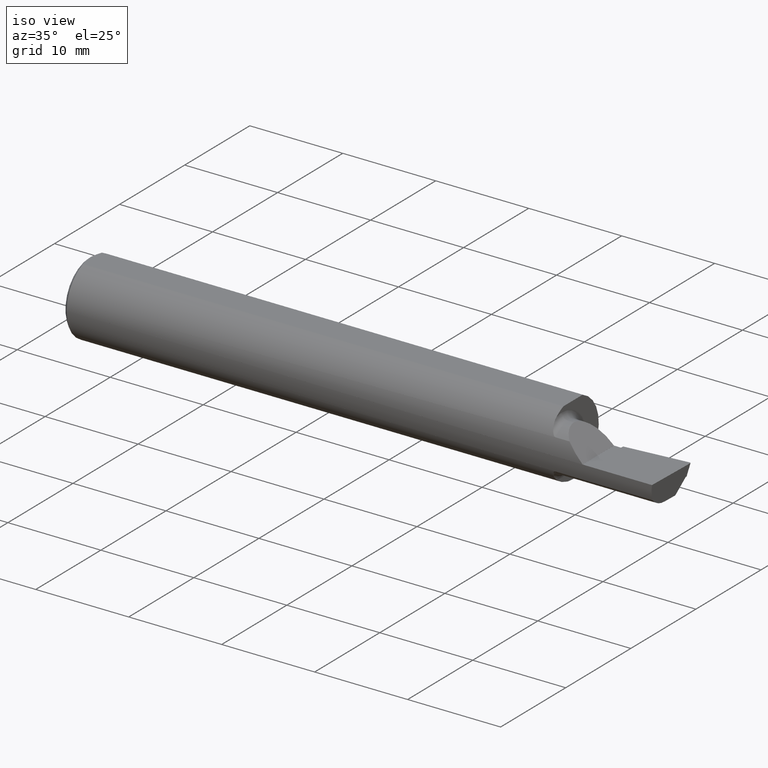
[diagram: clean part render]
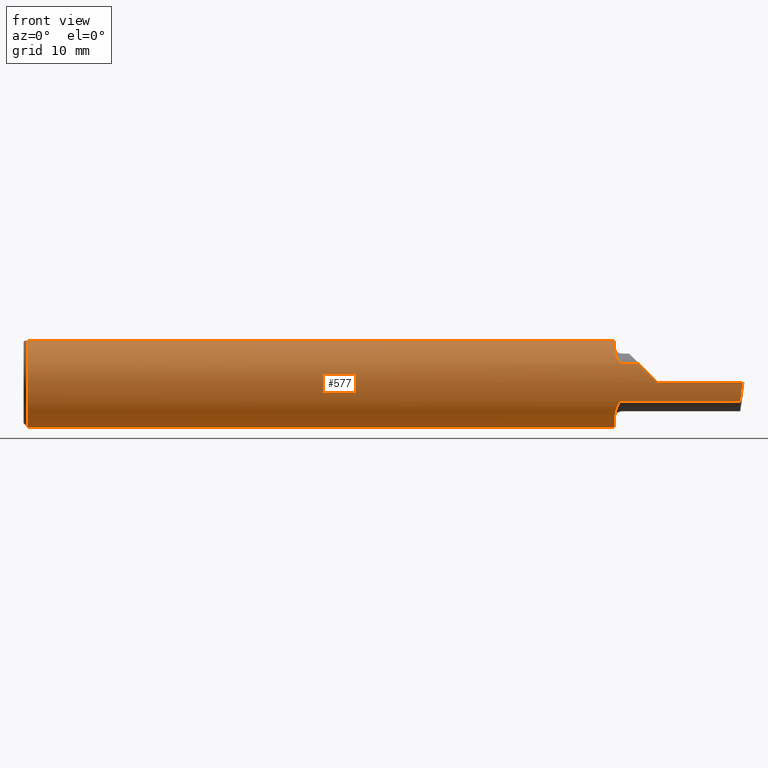
[diagram: tour spotlight — one face highlighted and labeled with its STEP entity id]
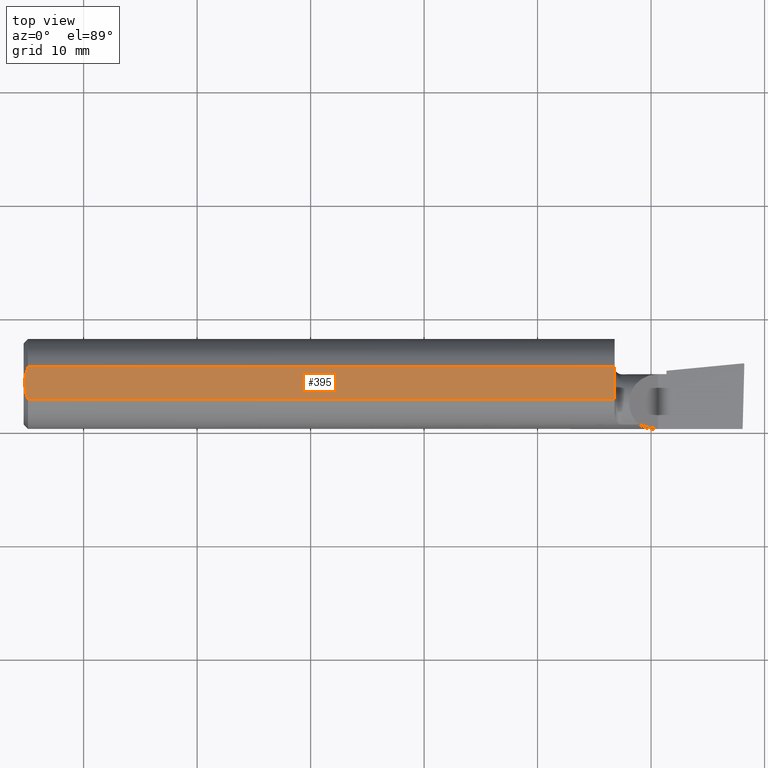
[diagram: tour spotlight — one face highlighted and labeled with its STEP entity id]
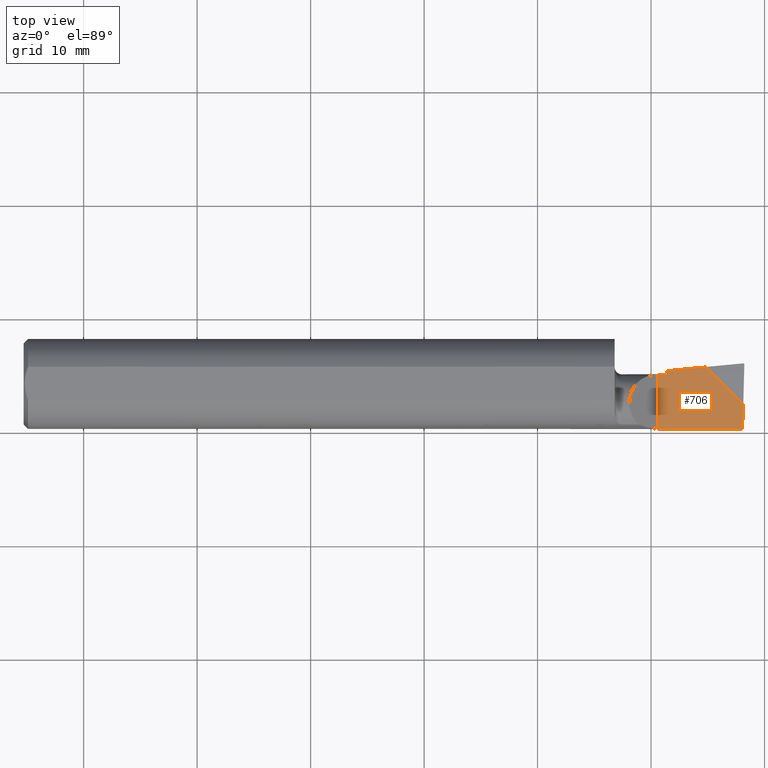
[diagram: tour spotlight — one face highlighted and labeled with its STEP entity id]
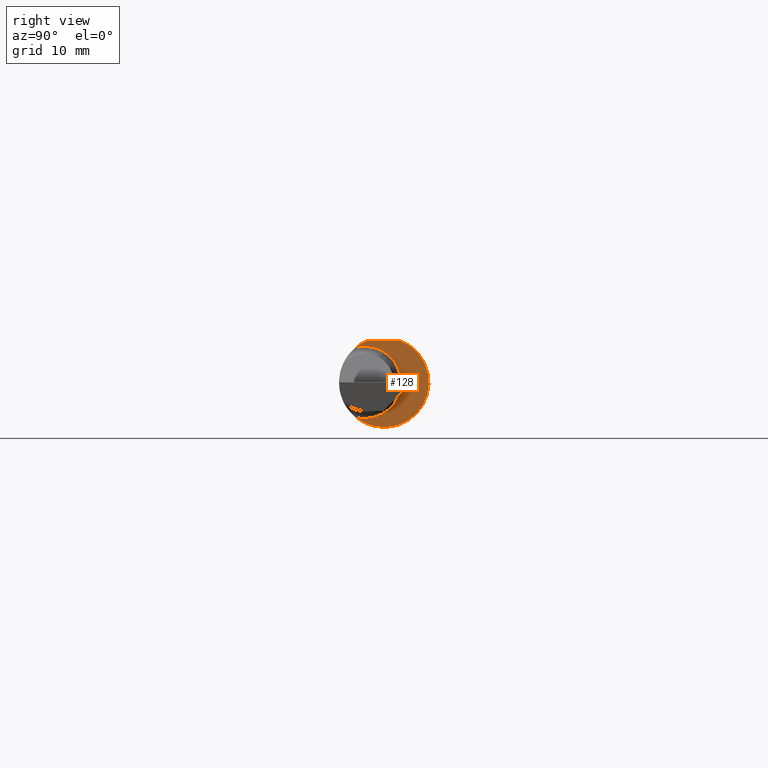
[diagram: tour spotlight — one face highlighted and labeled with its STEP entity id]
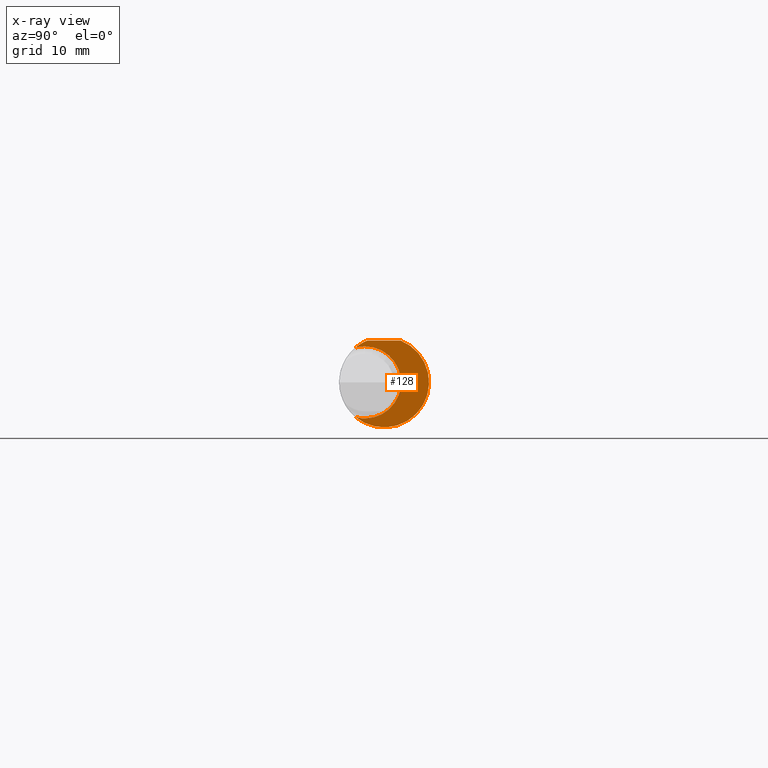
[diagram: x-ray of the same camera — body ghosted, this tour face saturated]
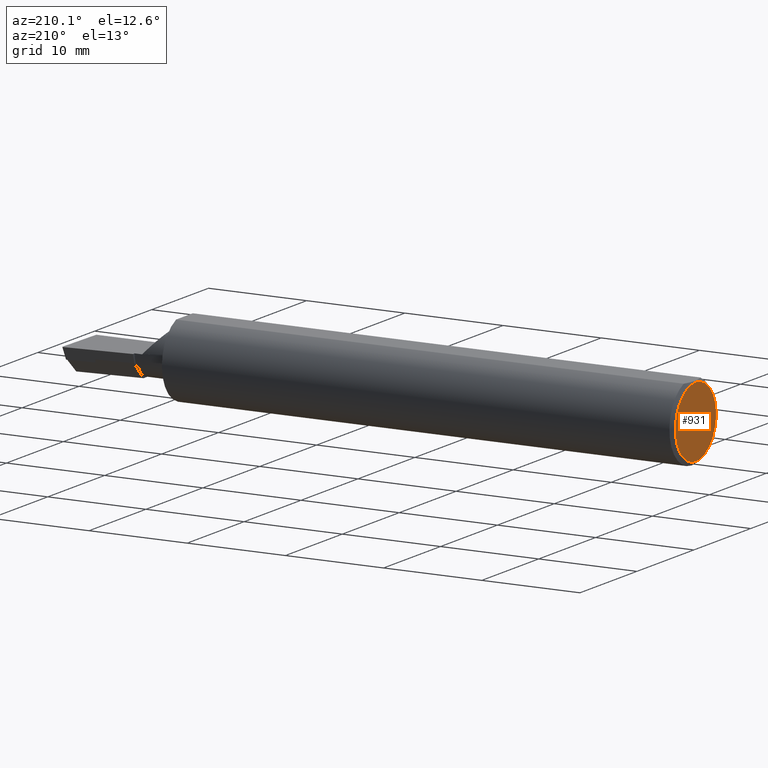
[diagram: tour spotlight — one face highlighted and labeled with its STEP entity id]
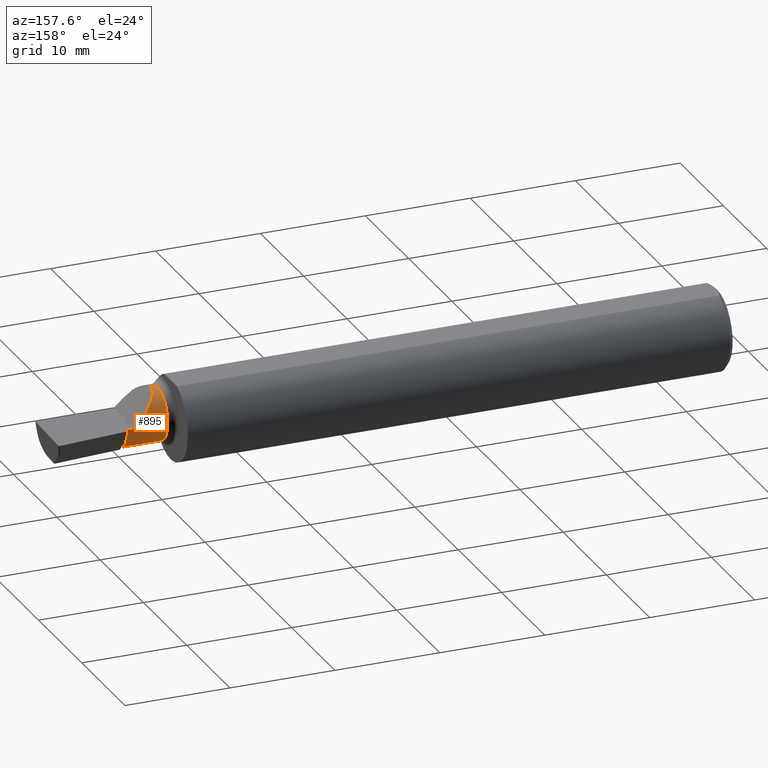
[diagram: tour spotlight — one face highlighted and labeled with its STEP entity id]
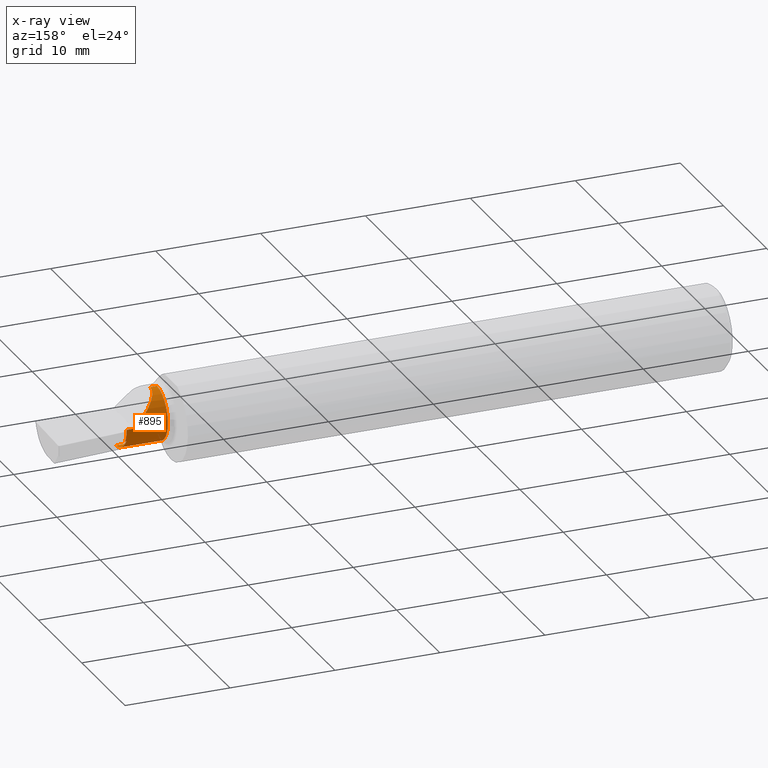
[diagram: x-ray of the same camera — body ghosted, this tour face saturated]
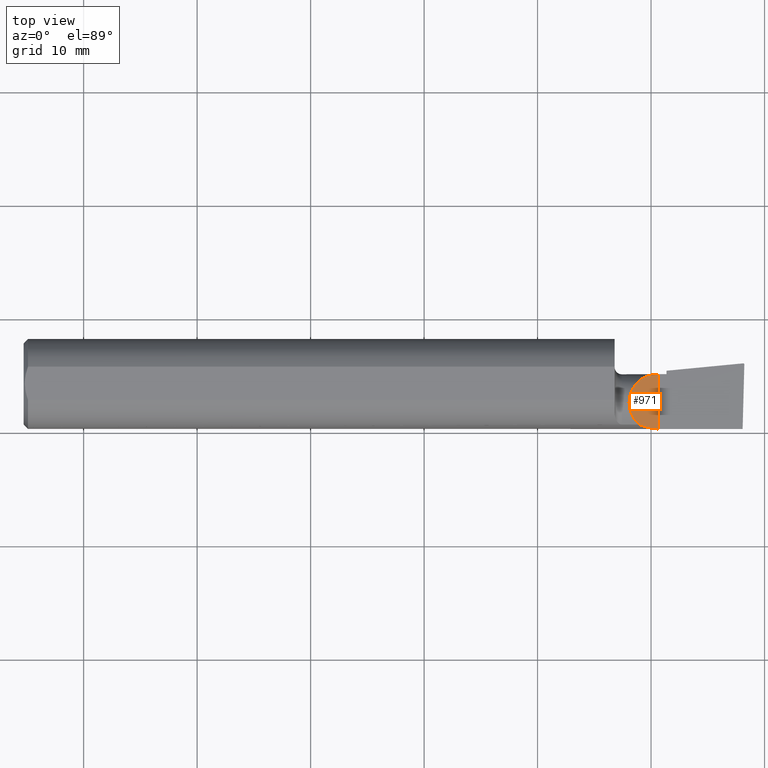
[diagram: tour spotlight — one face highlighted and labeled with its STEP entity id]
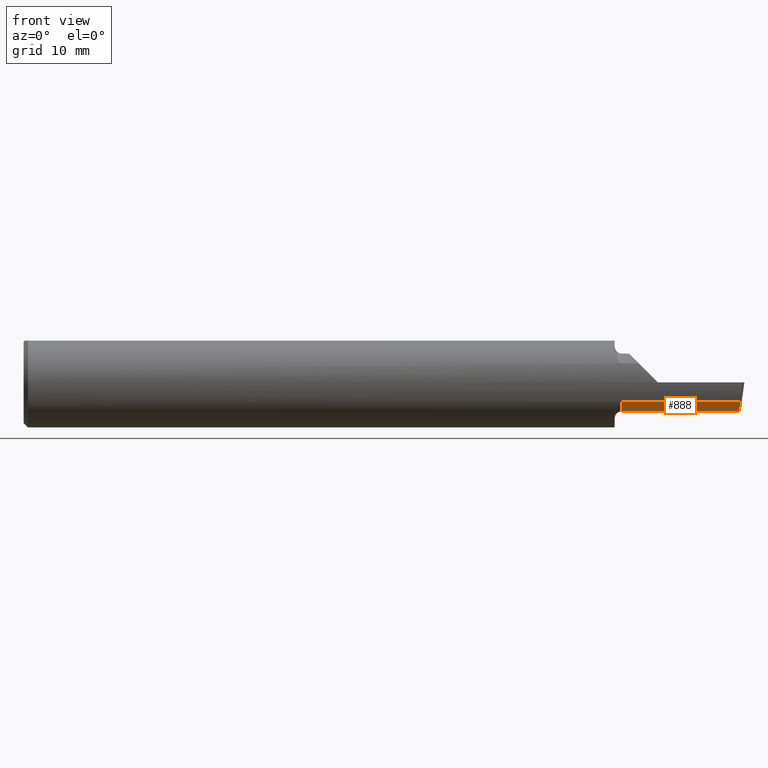
[diagram: tour spotlight — one face highlighted and labeled with its STEP entity id]
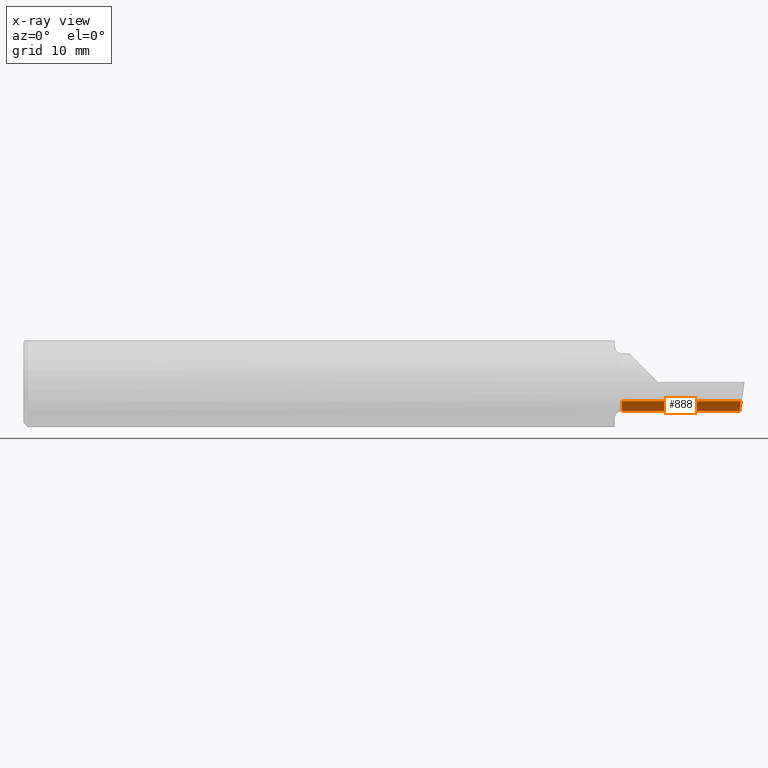
[diagram: x-ray of the same camera — body ghosted, this tour face saturated]
A machine part: a face-by-face anatomy tour. The part has 30 B-rep faces; the first image is the clean iso view, then the 8 largest visible faces are spotlighted one at a time (largest first), each with its STEP entity span.

Face 1 — front view, entity #577. In plain terms, the highlighted cylindrical surface (partial cylindrical patch) has radius 3.9649 mm, axis along (-1, -0, -0).
Definition (entity closure, byte-faithful):
#29 = CARTESIAN_POINT ( 'NONE',  ( 63.50000000000000000, -3.964939999999998577, -8.673617379884035472E-16 ) ) ;
#33 = CIRCLE ( 'NONE', #339, 3.964939999999999465 ) ;
#35 = CARTESIAN_POINT ( 'NONE',  ( 63.34721324168081225, -3.964939999999998577, -1.734723475976807094E-15 ) ) ;
#37 = DIRECTION ( 'NONE',  ( -1.000000000000000000, -0.000000000000000000, -0.000000000000000000 ) ) ;
#46 = VERTEX_POINT ( 'NONE', #1159 ) ;
#55 = ORIENTED_EDGE ( 'NONE', *, *, #1152, .T. ) ;
#59 = CARTESIAN_POINT ( 'NONE',  ( 52.10986463659906320, -3.000605534502818639, -2.611659286570838567 ) ) ;
#66 = CARTESIAN_POINT ( 'NONE',  ( 0.3809999999999924558, 0.000000000000000000, 0.000000000000000000 ) ) ;
#70 = VECTOR ( 'NONE', #833, 1000.000000000000000 ) ;
#78 = CARTESIAN_POINT ( 'NONE',  ( 52.62209333977406800, -3.593173028997538321, 1.676424154804801780 ) ) ;
#87 = CARTESIAN_POINT ( 'NONE',  ( 52.55266131581567635, -3.573289969088939255, -1.718397189166197547 ) ) ;
#88 = VERTEX_POINT ( 'NONE', #689 ) ;
#90 = EDGE_CURVE ( 'NONE', #695, #105, #33, .T. ) ;
#105 = VERTEX_POINT ( 'NONE', #694 ) ;
#107 = CARTESIAN_POINT ( 'NONE',  ( 63.50000000000000000, -1.462034237629201039, 3.685539999999999150 ) ) ;
#109 = ORIENTED_EDGE ( 'NONE', *, *, #278, .T. ) ;
#118 = AXIS2_PLACEMENT_3D ( 'NONE', #713, #1018, #923 ) ;
#120 = EDGE_CURVE ( 'NONE', #105, #620, #504, .T. ) ;
#121 = VERTEX_POINT ( 'NONE', #766 ) ;
#144 = LINE ( 'NONE', #239, #218 ) ;
#155 = EDGE_CURVE ( 'NONE', #997, #547, #699, .T. ) ;
#158 = CARTESIAN_POINT ( 'NONE',  ( 52.55257322604089154, -3.573254725572614365, 1.718470549442532302 ) ) ;
#178 = CARTESIAN_POINT ( 'NONE',  ( 52.52331072668533807, -3.560555847044618361, -1.744768704123047520 ) ) ;
#204 = DIRECTION ( 'NONE',  ( -1.000000000000000000, -0.000000000000000000, -0.000000000000000000 ) ) ;
#208 = CARTESIAN_POINT ( 'NONE',  ( 0.3809999999999924558, -1.462034237629201039, 3.685539999999999150 ) ) ;
#209 = CARTESIAN_POINT ( 'NONE',  ( 55.88000000000000256, -3.964939186418879213, 0.002539999999978843903 ) ) ;
#216 = CARTESIAN_POINT ( 'NONE',  ( 55.30478309583587304, -3.964570693771735765, 0.5777569041641154035 ) ) ;
#218 = VECTOR ( 'NONE', #332, 1000.000000000000000 ) ;
#222 = CARTESIAN_POINT ( 'NONE',  ( 55.88000000000000256, 0.000000000000000000, 0.000000000000000000 ) ) ;
#239 = CARTESIAN_POINT ( 'NONE',  ( 54.35600000000000165, -3.599887049924355154, -1.661794942640913098 ) ) ;
#247 =( BOUNDED_CURVE ( )  B_SPLINE_CURVE ( 3, ( #710, #904, #525, #35 ),
 .UNSPECIFIED., .F., .F. ) 
 B_SPLINE_CURVE_WITH_KNOTS ( ( 4, 4 ),
 ( 0.9266671109708575216, 1.359145557743733246 ),
 .UNSPECIFIED. ) 
 CURVE ( )  GEOMETRIC_REPRESENTATION_ITEM ( )  RATIONAL_B_SPLINE_CURVE ( ( 1.000000000000000000, 0.9844741726620815925, 0.9844741726620815925, 1.000000000000000000 ) ) 
 REPRESENTATION_ITEM ( '' )  );
#261 = CARTESIAN_POINT ( 'NONE',  ( 63.15280151554064503, -3.599887049924355598, -1.661794942640913542 ) ) ;
#262 = EDGE_CURVE ( 'NONE', #1171, #121, #1024, .T. ) ;
#277 = CARTESIAN_POINT ( 'NONE',  ( 52.70499999999999829, -3.599887049924355154, -1.661794942640913098 ) ) ;
#278 = EDGE_CURVE ( 'NONE', #88, #695, #632, .T. ) ;
#332 = DIRECTION ( 'NONE',  ( -1.000000000000000000, -0.000000000000000000, -0.000000000000000000 ) ) ;
#334 = AXIS2_PLACEMENT_3D ( 'NONE', #896, #798, #1183 ) ;
#339 = AXIS2_PLACEMENT_3D ( 'NONE', #222, #204, #996 ) ;
#344 = CARTESIAN_POINT ( 'NONE',  ( 52.07000000000000739, 0.000000000000000000, 0.000000000000000000 ) ) ;
#346 = CARTESIAN_POINT ( 'NONE',  ( 52.70499999999999829, -3.599887049924355154, -1.661794942640913098 ) ) ;
#355 = EDGE_CURVE ( 'NONE', #46, #396, #817, .T. ) ;
#390 = CARTESIAN_POINT ( 'NONE',  ( 54.74300171423059425, -3.840973355998292149, 1.139538285769383430 ) ) ;
#396 = VERTEX_POINT ( 'NONE', #928 ) ;
#401 = DIRECTION ( 'NONE',  ( -1.000000000000000000, -0.000000000000000000, -0.000000000000000000 ) ) ;
#427 = EDGE_CURVE ( 'NONE', #1171, #911, #980, .T. ) ;
#438 = AXIS2_PLACEMENT_3D ( 'NONE', #66, #540, #663 ) ;
#439 = AXIS2_PLACEMENT_3D ( 'NONE', #887, #573, #765 ) ;
#449 = CARTESIAN_POINT ( 'NONE',  ( 52.40013817098802917, -3.482913605042309513, 1.896197172601132186 ) ) ;
#452 = CARTESIAN_POINT ( 'NONE',  ( 52.44270401922563707, -3.517563494622021114, -1.830738248287720138 ) ) ;
#455 = CARTESIAN_POINT ( 'NONE',  ( 52.15278457167212878, -3.097160976341654770, 2.480706191382079151 ) ) ;
#457 = AXIS2_PLACEMENT_3D ( 'NONE', #344, #708, #719 ) ;
#461 = VERTEX_POINT ( 'NONE', #261 ) ;
#463 = CARTESIAN_POINT ( 'NONE',  ( 52.08086488926299751, -2.769437744535206303, 2.842117441750148465 ) ) ;
#468 = CARTESIAN_POINT ( 'NONE',  ( 52.12234523350261384, -2.993776095290413330, 2.604749827684864627 ) ) ;
#488 = VERTEX_POINT ( 'NONE', #208 ) ;
#490 = DIRECTION ( 'NONE',  ( 1.000000000000000000, 0.000000000000000000, 0.000000000000000000 ) ) ;
#504 =( BOUNDED_CURVE ( )  B_SPLINE_CURVE ( 3, ( #209, #216, #390, #893 ),
 .UNSPECIFIED., .F., .F. ) 
 B_SPLINE_CURVE_WITH_KNOTS ( ( 4, 4 ),
 ( 4.713029595418891660, 5.144867427157565842 ),
 .UNSPECIFIED. ) 
 CURVE ( )  GEOMETRIC_REPRESENTATION_ITEM ( )  RATIONAL_B_SPLINE_CURVE ( ( 1.000000000000000000, 0.9845199556095911575, 0.9845199556095911575, 1.000000000000000000 ) ) 
 REPRESENTATION_ITEM ( '' )  );
#509 = CARTESIAN_POINT ( 'NONE',  ( 52.70499999999999829, -3.599887049924355154, 1.661794942640912653 ) ) ;
#515 = CIRCLE ( 'NONE', #334, 3.964939999999999465 ) ;
#525 = CARTESIAN_POINT ( 'NONE',  ( 63.27647904615622565, -3.964940000000000353, -0.5760837926561040989 ) ) ;
#540 = DIRECTION ( 'NONE',  ( 1.000000000000000000, -0.000000000000000000, -0.000000000000000000 ) ) ;
#547 = VERTEX_POINT ( 'NONE', #1075 ) ;
#555 = CARTESIAN_POINT ( 'NONE',  ( 52.29039366075618744, -3.372877125526300812, 2.089606631779969526 ) ) ;
#567 = EDGE_CURVE ( 'NONE', #997, #488, #589, .T. ) ;
#569 = CARTESIAN_POINT ( 'NONE',  ( 52.40080737346492867, -3.483507757590340592, -1.895116055831527202 ) ) ;
#573 = DIRECTION ( 'NONE',  ( -1.000000000000000000, -0.000000000000000000, -0.000000000000000000 ) ) ;
#577 = ADVANCED_FACE ( 'NONE', ( #792 ), #1174, .T. ) ;
#589 = LINE ( 'NONE', #107, #681 ) ;
#598 = CARTESIAN_POINT ( 'NONE',  ( 54.22074505735906769, -3.599887049924353377, 1.661794942640917760 ) ) ;
#620 = VERTEX_POINT ( 'NONE', #598 ) ;
#632 = LINE ( 'NONE', #29, #755 ) ;
#656 = VERTEX_POINT ( 'NONE', #509 ) ;
#663 = DIRECTION ( 'NONE',  ( 0.000000000000000000, 0.000000000000000000, -1.000000000000000000 ) ) ;
#666 = CARTESIAN_POINT ( 'NONE',  ( 52.07000000000000739, -1.462034237629201483, 3.685539999999999150 ) ) ;
#669 = EDGE_CURVE ( 'NONE', #461, #911, #144, .T. ) ;
#681 = VECTOR ( 'NONE', #401, 1000.000000000000000 ) ;
#689 = CARTESIAN_POINT ( 'NONE',  ( 63.34721324168081225, -3.964939999999998577, -1.734723475976807094E-15 ) ) ;
#690 = ORIENTED_EDGE ( 'NONE', *, *, #155, .F. ) ;
#694 = CARTESIAN_POINT ( 'NONE',  ( 55.88000000000000256, -3.964939186418879213, 0.002539999999978843903 ) ) ;
#695 = VERTEX_POINT ( 'NONE', #907 ) ;
#699 = CIRCLE ( 'NONE', #118, 3.964939999999999465 ) ;
#702 = EDGE_LOOP ( 'NONE', ( #1187, #742, #109, #1034, #1195, #936, #55, #690, #812, #950, #715, #891, #1080, #1047 ) ) ;
#708 = DIRECTION ( 'NONE',  ( 1.000000000000000000, 0.000000000000000000, 0.000000000000000000 ) ) ;
#710 = CARTESIAN_POINT ( 'NONE',  ( 63.15280151554064503, -3.599887049924355598, -1.661794942640913542 ) ) ;
#713 = CARTESIAN_POINT ( 'NONE',  ( 52.07000000000000739, 0.000000000000000000, 0.000000000000000000 ) ) ;
#715 = ORIENTED_EDGE ( 'NONE', *, *, #355, .T. ) ;
#719 = DIRECTION ( 'NONE',  ( 0.000000000000000000, 0.000000000000000000, -1.000000000000000000 ) ) ;
#728 = EDGE_CURVE ( 'NONE', #461, #88, #247, .T. ) ;
#736 = CARTESIAN_POINT ( 'NONE',  ( 52.52245480245962739, -3.560155007699747021, 1.745585502201546957 ) ) ;
#742 = ORIENTED_EDGE ( 'NONE', *, *, #728, .T. ) ;
#744 = CARTESIAN_POINT ( 'NONE',  ( 54.35600000000000165, -3.599887049924355154, 1.661794942640912653 ) ) ;
#755 = VECTOR ( 'NONE', #37, 1000.000000000000000 ) ;
#765 = DIRECTION ( 'NONE',  ( 0.000000000000000000, 0.000000000000000000, 1.000000000000000000 ) ) ;
#766 = CARTESIAN_POINT ( 'NONE',  ( 52.07000000000000739, 1.462034237629201039, 3.685539999999999150 ) ) ;
#783 = B_SPLINE_CURVE_WITH_KNOTS ( 'NONE', 3,
 ( #1149, #1040, #78, #158, #736, #861, #449, #555, #832, #455, #468, #463, #1243, #841 ),
 .UNSPECIFIED., .F., .F.,
 ( 4, 2, 2, 2, 2, 2, 4 ),
 ( 0.000000000000000000, 0.0001252016961403281585, 0.0002504033922806563170, 0.0005008067845613117667, 0.001001613569122613992, 0.001502420353683916326, 0.002003227138245218444 ),
 .UNSPECIFIED. ) ;
#792 = FACE_OUTER_BOUND ( 'NONE', #702, .T. ) ;
#798 = DIRECTION ( 'NONE',  ( 1.000000000000000000, -0.000000000000000000, -0.000000000000000000 ) ) ;
#812 = ORIENTED_EDGE ( 'NONE', *, *, #567, .T. ) ;
#817 = CIRCLE ( 'NONE', #438, 3.964939999999999465 ) ;
#827 = EDGE_CURVE ( 'NONE', #488, #46, #515, .T. ) ;
#832 = CARTESIAN_POINT ( 'NONE',  ( 52.23726499476742191, -3.286836667701077186, 2.223289014318799328 ) ) ;
#833 = DIRECTION ( 'NONE',  ( 1.000000000000000000, 0.000000000000000000, 0.000000000000000000 ) ) ;
#841 = CARTESIAN_POINT ( 'NONE',  ( 52.07000000000000739, -2.519138184568832983, 3.061811883615197072 ) ) ;
#857 = CARTESIAN_POINT ( 'NONE',  ( 52.07000000000000739, -2.776463605467542450, -2.850094665743279077 ) ) ;
#861 = CARTESIAN_POINT ( 'NONE',  ( 52.44226220547251671, -3.517214224323104599, 1.831405522215774129 ) ) ;
#887 = CARTESIAN_POINT ( 'NONE',  ( 63.50000000000000000, 0.000000000000000000, 0.000000000000000000 ) ) ;
#891 = ORIENTED_EDGE ( 'NONE', *, *, #1054, .T. ) ;
#893 = CARTESIAN_POINT ( 'NONE',  ( 54.22074505735906769, -3.599887049924353377, 1.661794942640917760 ) ) ;
#896 = CARTESIAN_POINT ( 'NONE',  ( 0.3809999999999924558, 0.000000000000000000, 0.000000000000000000 ) ) ;
#904 = CARTESIAN_POINT ( 'NONE',  ( 63.21065313572312050, -3.841336638864746522, -1.138751319066780843 ) ) ;
#907 = CARTESIAN_POINT ( 'NONE',  ( 55.88000000000000256, -3.964939999999999465, -8.673617379884035472E-16 ) ) ;
#911 = VERTEX_POINT ( 'NONE', #346 ) ;
#923 = DIRECTION ( 'NONE',  ( 0.000000000000000000, 0.000000000000000000, -1.000000000000000000 ) ) ;
#928 = CARTESIAN_POINT ( 'NONE',  ( 0.3809999999999924558, 1.462034237629201039, 3.685539999999999150 ) ) ;
#936 = ORIENTED_EDGE ( 'NONE', *, *, #951, .F. ) ;
#949 = CARTESIAN_POINT ( 'NONE',  ( 52.23735470549298299, -3.287133544512903516, -2.222929241776083753 ) ) ;
#950 = ORIENTED_EDGE ( 'NONE', *, *, #827, .T. ) ;
#951 = EDGE_CURVE ( 'NONE', #656, #620, #952, .T. ) ;
#952 = LINE ( 'NONE', #744, #70 ) ;
#954 = CARTESIAN_POINT ( 'NONE',  ( 52.66273214518531631, -3.599887049924846316, -1.661794942640280492 ) ) ;
#980 = B_SPLINE_CURVE_WITH_KNOTS ( 'NONE', 3,
 ( #1141, #857, #59, #949, #1051, #569, #452, #178, #87, #1128, #954, #277 ),
 .UNSPECIFIED., .F., .F.,
 ( 4, 2, 2, 2, 2, 4 ),
 ( 0.000000000000000000, 0.0009854161110805809577, 0.001478124166620873496, 0.001724478194391019766, 0.001847655208276093117, 0.001970832222161166252 ),
 .UNSPECIFIED. ) ;
#996 = DIRECTION ( 'NONE',  ( 0.000000000000000000, 0.000000000000000000, 1.000000000000000000 ) ) ;
#997 = VERTEX_POINT ( 'NONE', #666 ) ;
#1018 = DIRECTION ( 'NONE',  ( 1.000000000000000000, 0.000000000000000000, 0.000000000000000000 ) ) ;
#1024 = CIRCLE ( 'NONE', #457, 3.964939999999999465 ) ;
#1034 = ORIENTED_EDGE ( 'NONE', *, *, #90, .T. ) ;
#1035 = CARTESIAN_POINT ( 'NONE',  ( 52.07000000000000739, -2.519138184568832983, -3.061811883615197072 ) ) ;
#1040 = CARTESIAN_POINT ( 'NONE',  ( 52.66244100483410051, -3.599887049924354709, 1.661794942640912653 ) ) ;
#1047 = ORIENTED_EDGE ( 'NONE', *, *, #427, .T. ) ;
#1051 = CARTESIAN_POINT ( 'NONE',  ( 52.29048060739425807, -3.373116484278351646, -2.089258773282957726 ) ) ;
#1054 = EDGE_CURVE ( 'NONE', #396, #121, #1145, .T. ) ;
#1075 = CARTESIAN_POINT ( 'NONE',  ( 52.07000000000000739, -2.519138184568832983, 3.061811883615197072 ) ) ;
#1080 = ORIENTED_EDGE ( 'NONE', *, *, #262, .F. ) ;
#1128 = CARTESIAN_POINT ( 'NONE',  ( 52.62223186210841419, -3.593202679785876708, -1.676360523546626569 ) ) ;
#1141 = CARTESIAN_POINT ( 'NONE',  ( 52.07000000000000739, -2.519138184568832983, -3.061811883615197072 ) ) ;
#1145 = LINE ( 'NONE', #1154, #1237 ) ;
#1149 = CARTESIAN_POINT ( 'NONE',  ( 52.70499999999999829, -3.599887049924355154, 1.661794942640912653 ) ) ;
#1152 = EDGE_CURVE ( 'NONE', #656, #547, #783, .T. ) ;
#1154 = CARTESIAN_POINT ( 'NONE',  ( 63.50000000000000000, 1.462034237629201039, 3.685539999999999150 ) ) ;
#1159 = CARTESIAN_POINT ( 'NONE',  ( 0.3809999999999924558, 0.000000000000000000, -3.964939999999999465 ) ) ;
#1171 = VERTEX_POINT ( 'NONE', #1035 ) ;
#1174 = CYLINDRICAL_SURFACE ( 'NONE', #439, 3.964939999999999465 ) ;
#1183 = DIRECTION ( 'NONE',  ( 0.000000000000000000, 0.000000000000000000, -1.000000000000000000 ) ) ;
#1187 = ORIENTED_EDGE ( 'NONE', *, *, #669, .F. ) ;
#1195 = ORIENTED_EDGE ( 'NONE', *, *, #120, .T. ) ;
#1237 = VECTOR ( 'NONE', #490, 1000.000000000000000 ) ;
#1243 = CARTESIAN_POINT ( 'NONE',  ( 52.07000000000000739, -2.647704699856520349, 2.956032420268233984 ) ) ;

Face 2 — top view, entity #395. In plain terms, the highlighted planar face has unit normal (0, 0, -1).
Definition (entity closure, byte-faithful):
#14 = B_SPLINE_CURVE_WITH_KNOTS ( 'NONE', 3,
 ( #137, #510, #818, #627, #898, #807 ),
 .UNSPECIFIED., .F., .F.,
 ( 4, 2, 4 ),
 ( 0.002945485300212928158, 0.003688377603187957543, 0.004431269906162986494 ),
 .UNSPECIFIED. ) ;
#52 = CARTESIAN_POINT ( 'NONE',  ( 52.07000000000000739, 2.540000000000000480, 3.685539999999999150 ) ) ;
#107 = CARTESIAN_POINT ( 'NONE',  ( 63.50000000000000000, -1.462034237629201039, 3.685539999999999150 ) ) ;
#121 = VERTEX_POINT ( 'NONE', #766 ) ;
#137 = CARTESIAN_POINT ( 'NONE',  ( 0.3809999999999924558, 1.462034237629201039, 3.685539999999999150 ) ) ;
#159 = CARTESIAN_POINT ( 'NONE',  ( 0.1015999999999284698, -0.2510152873235154125, 3.685539999999999150 ) ) ;
#165 = CARTESIAN_POINT ( 'NONE',  ( 0.2946835978831989777, -1.227949873118057589, 3.685539999999999150 ) ) ;
#184 = ORIENTED_EDGE ( 'NONE', *, *, #785, .F. ) ;
#208 = CARTESIAN_POINT ( 'NONE',  ( 0.3809999999999924558, -1.462034237629201039, 3.685539999999999150 ) ) ;
#225 = EDGE_CURVE ( 'NONE', #396, #243, #14, .T. ) ;
#243 = VERTEX_POINT ( 'NONE', #1114 ) ;
#314 = DIRECTION ( 'NONE',  ( 0.000000000000000000, -1.000000000000000000, 0.000000000000000000 ) ) ;
#384 = PLANE ( 'NONE',  #1103 ) ;
#395 = ADVANCED_FACE ( 'NONE', ( #1045 ), #384, .F. ) ;
#396 = VERTEX_POINT ( 'NONE', #928 ) ;
#401 = DIRECTION ( 'NONE',  ( -1.000000000000000000, -0.000000000000000000, -0.000000000000000000 ) ) ;
#473 = DIRECTION ( 'NONE',  ( -1.000000000000000000, 0.000000000000000000, 0.000000000000000000 ) ) ;
#488 = VERTEX_POINT ( 'NONE', #208 ) ;
#490 = DIRECTION ( 'NONE',  ( 1.000000000000000000, 0.000000000000000000, 0.000000000000000000 ) ) ;
#510 = CARTESIAN_POINT ( 'NONE',  ( 0.2941137992624218711, 1.226404617004863917, 3.685539999999999150 ) ) ;
#528 = EDGE_LOOP ( 'NONE', ( #184, #1009, #591, #1088, #1203 ) ) ;
#549 = CARTESIAN_POINT ( 'NONE',  ( 0.3809999999999924558, -1.462034237629201039, 3.685539999999999150 ) ) ;
#558 = CARTESIAN_POINT ( 'NONE',  ( 0.2247358976179796297, -0.9898225455501730163, 3.685539999999998706 ) ) ;
#567 = EDGE_CURVE ( 'NONE', #997, #488, #589, .T. ) ;
#589 = LINE ( 'NONE', #107, #681 ) ;
#591 = ORIENTED_EDGE ( 'NONE', *, *, #225, .T. ) ;
#627 = CARTESIAN_POINT ( 'NONE',  ( 0.1274433735584585836, 0.4981409861471362555, 3.685539999999998706 ) ) ;
#646 = CARTESIAN_POINT ( 'NONE',  ( 0.1015999999999948056, 3.500044931498621813E-16, 3.685539999999999150 ) ) ;
#666 = CARTESIAN_POINT ( 'NONE',  ( 52.07000000000000739, -1.462034237629201483, 3.685539999999999150 ) ) ;
#681 = VECTOR ( 'NONE', #401, 1000.000000000000000 ) ;
#739 = DIRECTION ( 'NONE',  ( -0.000000000000000000, 0.000000000000000000, -1.000000000000000000 ) ) ;
#766 = CARTESIAN_POINT ( 'NONE',  ( 52.07000000000000739, 1.462034237629201039, 3.685539999999999150 ) ) ;
#785 = EDGE_CURVE ( 'NONE', #121, #997, #995, .T. ) ;
#807 = CARTESIAN_POINT ( 'NONE',  ( 0.1015999999999948056, 3.500044931498621813E-16, 3.685539999999999150 ) ) ;
#818 = CARTESIAN_POINT ( 'NONE',  ( 0.2235145214959431414, 0.9851334071146859994, 3.685539999999999594 ) ) ;
#898 = CARTESIAN_POINT ( 'NONE',  ( 0.1015999999999299547, 0.2511217935535139389, 3.685539999999999150 ) ) ;
#928 = CARTESIAN_POINT ( 'NONE',  ( 0.3809999999999924558, 1.462034237629201039, 3.685539999999999150 ) ) ;
#934 = B_SPLINE_CURVE_WITH_KNOTS ( 'NONE', 3,
 ( #646, #159, #1036, #558, #165, #549 ),
 .UNSPECIFIED., .F., .F.,
 ( 4, 2, 4 ),
 ( 0.004431269906162986494, 0.005173847132308764286, 0.005916424358454542079 ),
 .UNSPECIFIED. ) ;
#941 = VECTOR ( 'NONE', #314, 1000.000000000000000 ) ;
#991 = EDGE_CURVE ( 'NONE', #243, #488, #934, .T. ) ;
#995 = LINE ( 'NONE', #52, #941 ) ;
#997 = VERTEX_POINT ( 'NONE', #666 ) ;
#1009 = ORIENTED_EDGE ( 'NONE', *, *, #1054, .F. ) ;
#1036 = CARTESIAN_POINT ( 'NONE',  ( 0.1280887710546985137, -0.5028858476047466386, 3.685539999999999594 ) ) ;
#1045 = FACE_OUTER_BOUND ( 'NONE', #528, .T. ) ;
#1054 = EDGE_CURVE ( 'NONE', #396, #121, #1145, .T. ) ;
#1088 = ORIENTED_EDGE ( 'NONE', *, *, #991, .T. ) ;
#1103 = AXIS2_PLACEMENT_3D ( 'NONE', #1211, #739, #473 ) ;
#1114 = CARTESIAN_POINT ( 'NONE',  ( 0.1015999999999948056, 3.500044931498621813E-16, 3.685539999999999150 ) ) ;
#1145 = LINE ( 'NONE', #1154, #1237 ) ;
#1154 = CARTESIAN_POINT ( 'NONE',  ( 63.50000000000000000, 1.462034237629201039, 3.685539999999999150 ) ) ;
#1203 = ORIENTED_EDGE ( 'NONE', *, *, #567, .F. ) ;
#1211 = CARTESIAN_POINT ( 'NONE',  ( 0.000000000000000000, 2.540000000000000480, 3.685539999999999150 ) ) ;
#1237 = VECTOR ( 'NONE', #490, 1000.000000000000000 ) ;

Face 3 — top view, entity #706. In plain terms, the highlighted planar face has unit normal (0, 0, -1).
Definition (entity closure, byte-faithful):
#29 = CARTESIAN_POINT ( 'NONE',  ( 63.50000000000000000, -3.964939999999998577, -8.673617379884035472E-16 ) ) ;
#37 = DIRECTION ( 'NONE',  ( -1.000000000000000000, -0.000000000000000000, -0.000000000000000000 ) ) ;
#54 = CARTESIAN_POINT ( 'NONE',  ( 60.14048454551709000, 1.502775454482920603, 0.000000000000000000 ) ) ;
#80 = EDGE_CURVE ( 'NONE', #695, #875, #600, .T. ) ;
#88 = VERTEX_POINT ( 'NONE', #689 ) ;
#135 = VECTOR ( 'NONE', #312, 1000.000000000000000 ) ;
#161 = LINE ( 'NONE', #1033, #635 ) ;
#169 = VERTEX_POINT ( 'NONE', #54 ) ;
#170 = CARTESIAN_POINT ( 'NONE',  ( 56.64199999999999591, 4.444999999999999396, -8.673617379884035472E-16 ) ) ;
#189 = VERTEX_POINT ( 'NONE', #1100 ) ;
#193 = VECTOR ( 'NONE', #269, 1000.000000000000000 ) ;
#230 = CARTESIAN_POINT ( 'NONE',  ( 55.88000000000000256, 4.444999999999999396, -8.673617379884035472E-16 ) ) ;
#268 = ORIENTED_EDGE ( 'NONE', *, *, #1245, .F. ) ;
#269 = DIRECTION ( 'NONE',  ( 0.000000000000000000, 1.000000000000000000, 0.000000000000000000 ) ) ;
#276 = AXIS2_PLACEMENT_3D ( 'NONE', #230, #809, #912 ) ;
#278 = EDGE_CURVE ( 'NONE', #88, #695, #632, .T. ) ;
#308 = CARTESIAN_POINT ( 'NONE',  ( 55.88000000000000256, 4.444999999999999396, -8.673617379884035472E-16 ) ) ;
#312 = DIRECTION ( 'NONE',  ( -0.000000000000000000, 1.000000000000000000, -0.000000000000000000 ) ) ;
#328 = CARTESIAN_POINT ( 'NONE',  ( 56.64199999999999591, 1.165909707461279421, -8.673617379884035472E-16 ) ) ;
#340 = EDGE_CURVE ( 'NONE', #88, #189, #161, .T. ) ;
#365 = ORIENTED_EDGE ( 'NONE', *, *, #340, .T. ) ;
#406 = LINE ( 'NONE', #1170, #819 ) ;
#408 = ORIENTED_EDGE ( 'NONE', *, *, #613, .F. ) ;
#424 = LINE ( 'NONE', #814, #554 ) ;
#430 = FACE_OUTER_BOUND ( 'NONE', #831, .T. ) ;
#453 = ORIENTED_EDGE ( 'NONE', *, *, #80, .F. ) ;
#512 = ORIENTED_EDGE ( 'NONE', *, *, #278, .F. ) ;
#543 = CARTESIAN_POINT ( 'NONE',  ( 56.64199999999999591, 0.8610600000000002696, -8.673617379884035472E-16 ) ) ;
#554 = VECTOR ( 'NONE', #1091, 1000.000000000000000 ) ;
#600 = LINE ( 'NONE', #308, #135 ) ;
#607 = ORIENTED_EDGE ( 'NONE', *, *, #759, .T. ) ;
#613 = EDGE_CURVE ( 'NONE', #169, #189, #406, .T. ) ;
#632 = LINE ( 'NONE', #29, #755 ) ;
#635 = VECTOR ( 'NONE', #642, 1000.000000000000114 ) ;
#642 = DIRECTION ( 'NONE',  ( 0.02637339639456100920, 0.9996521614854915194, 0.000000000000000000 ) ) ;
#665 = LINE ( 'NONE', #170, #193 ) ;
#668 = DIRECTION ( 'NONE',  ( 0.7071067811865437980, -0.7071067811865513475, 0.000000000000000000 ) ) ;
#677 = VERTEX_POINT ( 'NONE', #328 ) ;
#689 = CARTESIAN_POINT ( 'NONE',  ( 63.34721324168081225, -3.964939999999998577, -1.734723475976807094E-15 ) ) ;
#695 = VERTEX_POINT ( 'NONE', #907 ) ;
#706 = ADVANCED_FACE ( 'NONE', ( #430 ), #1010, .F. ) ;
#755 = VECTOR ( 'NONE', #37, 1000.000000000000000 ) ;
#759 = EDGE_CURVE ( 'NONE', #169, #677, #1108, .T. ) ;
#790 = EDGE_CURVE ( 'NONE', #875, #900, #424, .T. ) ;
#809 = DIRECTION ( 'NONE',  ( -0.000000000000000000, 0.000000000000000000, -1.000000000000000000 ) ) ;
#814 = CARTESIAN_POINT ( 'NONE',  ( 52.07000000000000739, 0.8610600000000002696, -8.673617379884035472E-16 ) ) ;
#819 = VECTOR ( 'NONE', #668, 1000.000000000000000 ) ;
#831 = EDGE_LOOP ( 'NONE', ( #365, #408, #607, #268, #1085, #453, #512 ) ) ;
#875 = VERTEX_POINT ( 'NONE', #1229 ) ;
#900 = VERTEX_POINT ( 'NONE', #543 ) ;
#907 = CARTESIAN_POINT ( 'NONE',  ( 55.88000000000000256, -3.964939999999999465, -8.673617379884035472E-16 ) ) ;
#912 = DIRECTION ( 'NONE',  ( -1.000000000000000000, 0.000000000000000000, 0.000000000000000000 ) ) ;
#1003 = VECTOR ( 'NONE', #1200, 999.9999999999998863 ) ;
#1010 = PLANE ( 'NONE',  #276 ) ;
#1016 = CARTESIAN_POINT ( 'NONE',  ( 56.19984000534059021, 1.123334542424496041, -8.673617379884035472E-16 ) ) ;
#1033 = CARTESIAN_POINT ( 'NONE',  ( 63.56374090757875450, 4.242283142520748562, -8.673617379884035472E-16 ) ) ;
#1085 = ORIENTED_EDGE ( 'NONE', *, *, #790, .F. ) ;
#1091 = DIRECTION ( 'NONE',  ( 1.000000000000000000, 0.000000000000000000, 0.000000000000000000 ) ) ;
#1100 = CARTESIAN_POINT ( 'NONE',  ( 63.40533060490047035, -1.762070604900496162, 0.000000000000000000 ) ) ;
#1108 = LINE ( 'NONE', #1016, #1003 ) ;
#1170 = CARTESIAN_POINT ( 'NONE',  ( 59.81700000000001438, 1.826260000000001327, 0.000000000000000000 ) ) ;
#1200 = DIRECTION ( 'NONE',  ( -0.9953961983671788527, -0.09584575252022424496, 0.000000000000000000 ) ) ;
#1229 = CARTESIAN_POINT ( 'NONE',  ( 55.88000000000000256, 0.8610600000000002696, -8.673617379884035472E-16 ) ) ;
#1245 = EDGE_CURVE ( 'NONE', #900, #677, #665, .T. ) ;

Face 4 — right view, entity #128. An x-ray twin of the same camera follows (body ghosted, this face saturated) — the face is partly hidden behind the body. In plain terms, the highlighted planar face has unit normal (1, 0, 0).
Definition (entity closure, byte-faithful):
#5 = ORIENTED_EDGE ( 'NONE', *, *, #155, .T. ) ;
#47 = AXIS2_PLACEMENT_3D ( 'NONE', #1031, #849, #245 ) ;
#52 = CARTESIAN_POINT ( 'NONE',  ( 52.07000000000000739, 2.540000000000000480, 3.685539999999999150 ) ) ;
#63 = CARTESIAN_POINT ( 'NONE',  ( 52.07000000000000739, -1.678939999999999433, 0.000000000000000000 ) ) ;
#79 = DIRECTION ( 'NONE',  ( -1.000000000000000000, -0.000000000000000000, -0.000000000000000000 ) ) ;
#115 = EDGE_CURVE ( 'NONE', #747, #1171, #1181, .T. ) ;
#118 = AXIS2_PLACEMENT_3D ( 'NONE', #713, #1018, #923 ) ;
#121 = VERTEX_POINT ( 'NONE', #766 ) ;
#128 = ADVANCED_FACE ( 'NONE', ( #1153 ), #1063, .T. ) ;
#155 = EDGE_CURVE ( 'NONE', #997, #547, #699, .T. ) ;
#197 = DIRECTION ( 'NONE',  ( 1.000000000000000000, 0.000000000000000000, 0.000000000000000000 ) ) ;
#245 = DIRECTION ( 'NONE',  ( 0.000000000000000000, 0.000000000000000000, -1.000000000000000000 ) ) ;
#262 = EDGE_CURVE ( 'NONE', #1171, #121, #1024, .T. ) ;
#314 = DIRECTION ( 'NONE',  ( 0.000000000000000000, -1.000000000000000000, 0.000000000000000000 ) ) ;
#337 = VERTEX_POINT ( 'NONE', #546 ) ;
#344 = CARTESIAN_POINT ( 'NONE',  ( 52.07000000000000739, 0.000000000000000000, 0.000000000000000000 ) ) ;
#403 = ORIENTED_EDGE ( 'NONE', *, *, #785, .T. ) ;
#457 = AXIS2_PLACEMENT_3D ( 'NONE', #344, #708, #719 ) ;
#506 = DIRECTION ( 'NONE',  ( -1.000000000000000000, -0.000000000000000000, -0.000000000000000000 ) ) ;
#519 = ORIENTED_EDGE ( 'NONE', *, *, #879, .T. ) ;
#546 = CARTESIAN_POINT ( 'NONE',  ( 52.07000000000000739, -1.678939999999998989, 3.175000000000000266 ) ) ;
#547 = VERTEX_POINT ( 'NONE', #1075 ) ;
#590 = CARTESIAN_POINT ( 'NONE',  ( 52.07000000000000739, 4.671060000000001544, 0.000000000000000000 ) ) ;
#594 = DIRECTION ( 'NONE',  ( 0.000000000000000000, 0.000000000000000000, -1.000000000000000000 ) ) ;
#666 = CARTESIAN_POINT ( 'NONE',  ( 52.07000000000000739, -1.462034237629201483, 3.685539999999999150 ) ) ;
#699 = CIRCLE ( 'NONE', #118, 3.964939999999999465 ) ;
#708 = DIRECTION ( 'NONE',  ( 1.000000000000000000, 0.000000000000000000, 0.000000000000000000 ) ) ;
#713 = CARTESIAN_POINT ( 'NONE',  ( 52.07000000000000739, 0.000000000000000000, 0.000000000000000000 ) ) ;
#714 = AXIS2_PLACEMENT_3D ( 'NONE', #590, #197, #968 ) ;
#719 = DIRECTION ( 'NONE',  ( 0.000000000000000000, 0.000000000000000000, -1.000000000000000000 ) ) ;
#747 = VERTEX_POINT ( 'NONE', #1098 ) ;
#766 = CARTESIAN_POINT ( 'NONE',  ( 52.07000000000000739, 1.462034237629201039, 3.685539999999999150 ) ) ;
#785 = EDGE_CURVE ( 'NONE', #121, #997, #995, .T. ) ;
#844 = EDGE_CURVE ( 'NONE', #337, #747, #1138, .T. ) ;
#849 = DIRECTION ( 'NONE',  ( -1.000000000000000000, -0.000000000000000000, -0.000000000000000000 ) ) ;
#879 = EDGE_CURVE ( 'NONE', #547, #337, #1119, .T. ) ;
#923 = DIRECTION ( 'NONE',  ( 0.000000000000000000, 0.000000000000000000, -1.000000000000000000 ) ) ;
#925 = ORIENTED_EDGE ( 'NONE', *, *, #115, .T. ) ;
#939 = DIRECTION ( 'NONE',  ( 0.000000000000000000, 0.000000000000000000, -1.000000000000000000 ) ) ;
#941 = VECTOR ( 'NONE', #314, 1000.000000000000000 ) ;
#968 = DIRECTION ( 'NONE',  ( 0.000000000000000000, 0.000000000000000000, -1.000000000000000000 ) ) ;
#995 = LINE ( 'NONE', #52, #941 ) ;
#997 = VERTEX_POINT ( 'NONE', #666 ) ;
#1014 = ORIENTED_EDGE ( 'NONE', *, *, #844, .T. ) ;
#1018 = DIRECTION ( 'NONE',  ( 1.000000000000000000, 0.000000000000000000, 0.000000000000000000 ) ) ;
#1024 = CIRCLE ( 'NONE', #457, 3.964939999999999465 ) ;
#1031 = CARTESIAN_POINT ( 'NONE',  ( 52.07000000000000739, -1.678939999999999433, 0.000000000000000000 ) ) ;
#1035 = CARTESIAN_POINT ( 'NONE',  ( 52.07000000000000739, -2.519138184568832983, -3.061811883615197072 ) ) ;
#1062 = AXIS2_PLACEMENT_3D ( 'NONE', #63, #79, #939 ) ;
#1063 = PLANE ( 'NONE',  #714 ) ;
#1075 = CARTESIAN_POINT ( 'NONE',  ( 52.07000000000000739, -2.519138184568832983, 3.061811883615197072 ) ) ;
#1076 = CARTESIAN_POINT ( 'NONE',  ( 52.07000000000000739, -1.678939999999999433, 0.000000000000000000 ) ) ;
#1095 = EDGE_LOOP ( 'NONE', ( #5, #519, #1014, #925, #1111, #403 ) ) ;
#1098 = CARTESIAN_POINT ( 'NONE',  ( 52.07000000000000739, -1.678939999999999433, -3.175000000000000266 ) ) ;
#1111 = ORIENTED_EDGE ( 'NONE', *, *, #262, .T. ) ;
#1119 = CIRCLE ( 'NONE', #47, 3.175000000000000266 ) ;
#1138 = CIRCLE ( 'NONE', #1062, 3.175000000000000266 ) ;
#1153 = FACE_OUTER_BOUND ( 'NONE', #1095, .T. ) ;
#1171 = VERTEX_POINT ( 'NONE', #1035 ) ;
#1181 = CIRCLE ( 'NONE', #1241, 3.175000000000000266 ) ;
#1241 = AXIS2_PLACEMENT_3D ( 'NONE', #1076, #506, #594 ) ;

Face 5 — auxiliary view, entity #931. In plain terms, the highlighted planar face has unit normal (1, 0, 0).
Definition (entity closure, byte-faithful):
#85 = DIRECTION ( 'NONE',  ( -1.000000000000000000, -0.000000000000000000, -0.000000000000000000 ) ) ;
#113 = AXIS2_PLACEMENT_3D ( 'NONE', #458, #843, #1165 ) ;
#149 = AXIS2_PLACEMENT_3D ( 'NONE', #1049, #254, #566 ) ;
#174 = DIRECTION ( 'NONE',  ( 0.000000000000000000, 0.000000000000000000, -1.000000000000000000 ) ) ;
#254 = DIRECTION ( 'NONE',  ( 1.000000000000000000, 0.000000000000000000, 0.000000000000000000 ) ) ;
#264 = CARTESIAN_POINT ( 'NONE',  ( 0.000000000000000000, 0.000000000000000000, -3.583940000000000570 ) ) ;
#428 = ORIENTED_EDGE ( 'NONE', *, *, #922, .T. ) ;
#458 = CARTESIAN_POINT ( 'NONE',  ( 0.000000000000000000, 0.000000000000000000, 0.000000000000000000 ) ) ;
#553 = ORIENTED_EDGE ( 'NONE', *, *, #993, .T. ) ;
#566 = DIRECTION ( 'NONE',  ( 0.000000000000000000, 0.000000000000000000, -1.000000000000000000 ) ) ;
#721 = CARTESIAN_POINT ( 'NONE',  ( 0.000000000000000000, 0.000000000000000000, 0.000000000000000000 ) ) ;
#725 = VERTEX_POINT ( 'NONE', #1006 ) ;
#731 = CIRCLE ( 'NONE', #1178, 3.583940000000000570 ) ;
#737 = FACE_OUTER_BOUND ( 'NONE', #1077, .T. ) ;
#843 = DIRECTION ( 'NONE',  ( -1.000000000000000000, -0.000000000000000000, -0.000000000000000000 ) ) ;
#922 = EDGE_CURVE ( 'NONE', #1226, #725, #731, .T. ) ;
#931 = ADVANCED_FACE ( 'NONE', ( #737 ), #1120, .F. ) ;
#993 = EDGE_CURVE ( 'NONE', #725, #1226, #1196, .T. ) ;
#1006 = CARTESIAN_POINT ( 'NONE',  ( 0.000000000000000000, 4.622355864573735845E-16, 3.583940000000000570 ) ) ;
#1049 = CARTESIAN_POINT ( 'NONE',  ( 0.000000000000000000, 0.000000000000000000, 0.000000000000000000 ) ) ;
#1077 = EDGE_LOOP ( 'NONE', ( #428, #553 ) ) ;
#1120 = PLANE ( 'NONE',  #149 ) ;
#1165 = DIRECTION ( 'NONE',  ( 0.000000000000000000, 0.000000000000000000, -1.000000000000000000 ) ) ;
#1178 = AXIS2_PLACEMENT_3D ( 'NONE', #721, #85, #174 ) ;
#1196 = CIRCLE ( 'NONE', #113, 3.583940000000000570 ) ;
#1226 = VERTEX_POINT ( 'NONE', #264 ) ;

Face 6 — auxiliary view, entity #895. An x-ray twin of the same camera follows (body ghosted, this face saturated) — the face is partly hidden behind the body. In plain terms, the highlighted cylindrical surface (edge-blend (fillet) strip) has radius 2.54 mm, axis along (-1, -0, -0).
Definition (entity closure, byte-faithful):
#20 = VERTEX_POINT ( 'NONE', #318 ) ;
#34 =( BOUNDED_CURVE ( )  B_SPLINE_CURVE ( 3, ( #805, #136, #139, #129 ),
 .UNSPECIFIED., .F., .F. ) 
 B_SPLINE_CURVE_WITH_KNOTS ( ( 4, 4 ),
 ( 2.885266815324717626, 2.898469550304954900 ),
 .UNSPECIFIED. ) 
 CURVE ( )  GEOMETRIC_REPRESENTATION_ITEM ( )  RATIONAL_B_SPLINE_CURVE ( ( 1.000000000000000000, 0.9999854740351713511, 0.9999854740351713511, 1.000000000000000000 ) ) 
 REPRESENTATION_ITEM ( '' )  );
#42 = ORIENTED_EDGE ( 'NONE', *, *, #790, .T. ) ;
#62 = EDGE_CURVE ( 'NONE', #709, #281, #1162, .T. ) ;
#92 = EDGE_CURVE ( 'NONE', #256, #564, #482, .T. ) ;
#96 = CARTESIAN_POINT ( 'NONE',  ( 56.57853211268948712, 0.02262286437495038965, -1.934391978167294690 ) ) ;
#116 = DIRECTION ( 'NONE',  ( 0.000000000000000000, 0.000000000000000000, 1.000000000000000000 ) ) ;
#125 = CARTESIAN_POINT ( 'NONE',  ( 55.88000000000000256, 0.8610587299996853572, 0.002539999999979711265 ) ) ;
#129 = CARTESIAN_POINT ( 'NONE',  ( 56.64199999999999591, 0.5162690332466169929, -1.277754788820006482 ) ) ;
#136 = CARTESIAN_POINT ( 'NONE',  ( 56.56308786096883523, 0.5274517890126284581, -1.258395895548296339 ) ) ;
#139 = CARTESIAN_POINT ( 'NONE',  ( 56.60306167935596733, 0.5218923600378172489, -1.268093797621262731 ) ) ;
#162 = ORIENTED_EDGE ( 'NONE', *, *, #561, .T. ) ;
#185 = CARTESIAN_POINT ( 'NONE',  ( 52.70499999999999829, -1.678939999999999433, 0.000000000000000000 ) ) ;
#256 = VERTEX_POINT ( 'NONE', #1207 ) ;
#279 = ORIENTED_EDGE ( 'NONE', *, *, #62, .T. ) ;
#280 = DIRECTION ( 'NONE',  ( 1.000000000000000000, 0.000000000000000000, 0.000000000000000000 ) ) ;
#281 = VERTEX_POINT ( 'NONE', #422 ) ;
#287 = ORIENTED_EDGE ( 'NONE', *, *, #621, .F. ) ;
#318 = CARTESIAN_POINT ( 'NONE',  ( 55.88000000000000256, 0.8610587299996853572, 0.002539999999979711265 ) ) ;
#323 = CARTESIAN_POINT ( 'NONE',  ( 53.34253999999997831, -0.1922219241183829586, 2.540000000000000036 ) ) ;
#350 = CARTESIAN_POINT ( 'NONE',  ( 52.07000000000000739, -1.678939999999999433, 0.000000000000000000 ) ) ;
#359 = CIRCLE ( 'NONE', #1065, 2.540000000000000036 ) ;
#375 = CARTESIAN_POINT ( 'NONE',  ( 56.64199999999999591, -0.3352786765604244823, -2.155498607722262427 ) ) ;
#388 = DIRECTION ( 'NONE',  ( -1.000000000000000000, -0.000000000000000000, -0.000000000000000000 ) ) ;
#392 =( BOUNDED_CURVE ( )  B_SPLINE_CURVE ( 3, ( #375, #1028, #638, #754 ),
 .UNSPECIFIED., .F., .T. ) 
 B_SPLINE_CURVE_WITH_KNOTS ( ( 4, 4 ),
 ( 3.384715756874631332, 3.388695282948744225 ),
 .UNSPECIFIED. ) 
 CURVE ( )  GEOMETRIC_REPRESENTATION_ITEM ( )  RATIONAL_B_SPLINE_CURVE ( ( 1.000000000000000000, 0.9999986802814542219, 0.9999986802814542219, 1.000000000000000000 ) ) 
 REPRESENTATION_ITEM ( '' )  );
#398 = CARTESIAN_POINT ( 'NONE',  ( 52.07000000000000739, -1.678939999999999211, -2.540000000000000036 ) ) ;
#413 = CARTESIAN_POINT ( 'NONE',  ( 54.39328266747760665, 0.8595720119238138279, 1.489257332522372135 ) ) ;
#422 = CARTESIAN_POINT ( 'NONE',  ( 56.64199999999999591, -1.678939999999999433, -2.540000000000000480 ) ) ;
#424 = LINE ( 'NONE', #814, #554 ) ;
#481 = CARTESIAN_POINT ( 'NONE',  ( 56.54978564970318189, 0.3211662971372760689, -1.623811351964777439 ) ) ;
#482 = LINE ( 'NONE', #675, #862 ) ;
#500 = AXIS2_PLACEMENT_3D ( 'NONE', #685, #701, #116 ) ;
#502 = ORIENTED_EDGE ( 'NONE', *, *, #92, .F. ) ;
#521 = EDGE_CURVE ( 'NONE', #20, #875, #986, .T. ) ;
#543 = CARTESIAN_POINT ( 'NONE',  ( 56.64199999999999591, 0.8610600000000002696, -8.673617379884035472E-16 ) ) ;
#554 = VECTOR ( 'NONE', #1091, 1000.000000000000000 ) ;
#561 = EDGE_CURVE ( 'NONE', #900, #1134, #359, .T. ) ;
#564 = VERTEX_POINT ( 'NONE', #979 ) ;
#570 = ORIENTED_EDGE ( 'NONE', *, *, #743, .F. ) ;
#580 = AXIS2_PLACEMENT_3D ( 'NONE', #674, #688, #989 ) ;
#593 = CARTESIAN_POINT ( 'NONE',  ( 56.64199999999999591, -1.678939999999999433, 0.000000000000000000 ) ) ;
#595 = VERTEX_POINT ( 'NONE', #781 ) ;
#605 = CARTESIAN_POINT ( 'NONE',  ( 56.60650789487561951, -0.3438671563499254846, -2.160828660988211247 ) ) ;
#621 = EDGE_CURVE ( 'NONE', #802, #1179, #636, .T. ) ;
#634 = EDGE_LOOP ( 'NONE', ( #279, #808, #740, #502, #881, #1116, #42, #162, #570, #287, #1057 ) ) ;
#636 =( BOUNDED_CURVE ( )  B_SPLINE_CURVE ( 3, ( #960, #96, #481, #867 ),
 .UNSPECIFIED., .F., .F. ) 
 B_SPLINE_CURVE_WITH_KNOTS ( ( 4, 4 ),
 ( 4.479557257772968981, 4.982985725396996024 ),
 .UNSPECIFIED. ) 
 CURVE ( )  GEOMETRIC_REPRESENTATION_ITEM ( )  RATIONAL_B_SPLINE_CURVE ( ( 1.000000000000000000, 0.9789912600431245338, 0.9789912600431245338, 1.000000000000000000 ) ) 
 REPRESENTATION_ITEM ( '' )  );
#638 = CARTESIAN_POINT ( 'NONE',  ( 56.61843269633377673, -0.3410007964591669216, -2.159057674088893819 ) ) ;
#652 = DIRECTION ( 'NONE',  ( -1.000000000000000000, -0.000000000000000000, -0.000000000000000000 ) ) ;
#661 = DIRECTION ( 'NONE',  ( 0.000000000000000000, 0.000000000000000000, 1.000000000000000000 ) ) ;
#674 = CARTESIAN_POINT ( 'NONE',  ( 55.88000000000000256, -1.678939999999999433, 0.000000000000000000 ) ) ;
#675 = CARTESIAN_POINT ( 'NONE',  ( 52.07000000000000739, -1.678939999999999433, 2.540000000000000036 ) ) ;
#685 = CARTESIAN_POINT ( 'NONE',  ( 56.64199999999999591, -1.678939999999999433, 0.000000000000000000 ) ) ;
#688 = DIRECTION ( 'NONE',  ( -1.000000000000000000, -0.000000000000000000, -0.000000000000000000 ) ) ;
#700 = CARTESIAN_POINT ( 'NONE',  ( 56.64199999999999591, -0.3352786765604244823, -2.155498607722262427 ) ) ;
#701 = DIRECTION ( 'NONE',  ( -1.000000000000000000, -0.000000000000000000, -0.000000000000000000 ) ) ;
#709 = VERTEX_POINT ( 'NONE', #700 ) ;
#740 = ORIENTED_EDGE ( 'NONE', *, *, #1204, .T. ) ;
#743 = EDGE_CURVE ( 'NONE', #1179, #1134, #34, .T. ) ;
#754 = CARTESIAN_POINT ( 'NONE',  ( 56.60650789487561951, -0.3438671563499254846, -2.160828660988211247 ) ) ;
#762 = EDGE_CURVE ( 'NONE', #20, #256, #981, .T. ) ;
#781 = CARTESIAN_POINT ( 'NONE',  ( 52.70499999999999829, -1.678939999999999211, -2.540000000000000036 ) ) ;
#788 = DIRECTION ( 'NONE',  ( 0.000000000000000000, 0.000000000000000000, 1.000000000000000000 ) ) ;
#790 = EDGE_CURVE ( 'NONE', #875, #900, #424, .T. ) ;
#802 = VERTEX_POINT ( 'NONE', #605 ) ;
#805 = CARTESIAN_POINT ( 'NONE',  ( 56.52208028681336316, 0.5329470779028410155, -1.248661505215256540 ) ) ;
#808 = ORIENTED_EDGE ( 'NONE', *, *, #1107, .T. ) ;
#813 = VECTOR ( 'NONE', #388, 1000.000000000000000 ) ;
#814 = CARTESIAN_POINT ( 'NONE',  ( 52.07000000000000739, 0.8610600000000002696, -8.673617379884035472E-16 ) ) ;
#862 = VECTOR ( 'NONE', #1246, 1000.000000000000000 ) ;
#864 = CARTESIAN_POINT ( 'NONE',  ( 56.64199999999999591, 0.5162690332466169929, -1.277754788820006482 ) ) ;
#867 = CARTESIAN_POINT ( 'NONE',  ( 56.52208028681336316, 0.5329470779028410155, -1.248661505215256540 ) ) ;
#875 = VERTEX_POINT ( 'NONE', #1229 ) ;
#881 = ORIENTED_EDGE ( 'NONE', *, *, #762, .F. ) ;
#895 = ADVANCED_FACE ( 'NONE', ( #1209 ), #1137, .T. ) ;
#900 = VERTEX_POINT ( 'NONE', #543 ) ;
#918 = CARTESIAN_POINT ( 'NONE',  ( 53.34253999999999252, -1.678939999999999433, 2.540000000000000036 ) ) ;
#960 = CARTESIAN_POINT ( 'NONE',  ( 56.60650789487561951, -0.3438671563499254846, -2.160828660988211247 ) ) ;
#961 = AXIS2_PLACEMENT_3D ( 'NONE', #350, #652, #661 ) ;
#970 = LINE ( 'NONE', #398, #813 ) ;
#979 = CARTESIAN_POINT ( 'NONE',  ( 52.70499999999999829, -1.678939999999999433, 2.540000000000000036 ) ) ;
#981 =( BOUNDED_CURVE ( )  B_SPLINE_CURVE ( 3, ( #125, #413, #323, #918 ),
 .UNSPECIFIED., .F., .F. ) 
 B_SPLINE_CURVE_WITH_KNOTS ( ( 4, 4 ),
 ( 4.713388980551348695, 6.283185307179586232 ),
 .UNSPECIFIED. ) 
 CURVE ( )  GEOMETRIC_REPRESENTATION_ITEM ( )  RATIONAL_B_SPLINE_CURVE ( ( 1.000000000000000000, 0.8049734974886378902, 0.8049734974886378902, 1.000000000000000000 ) ) 
 REPRESENTATION_ITEM ( '' )  );
#983 = AXIS2_PLACEMENT_3D ( 'NONE', #185, #280, #1130 ) ;
#986 = CIRCLE ( 'NONE', #580, 2.540000000000000036 ) ;
#989 = DIRECTION ( 'NONE',  ( 0.000000000000000000, 0.000000000000000000, 1.000000000000000000 ) ) ;
#1028 = CARTESIAN_POINT ( 'NONE',  ( 56.63026341365512906, -0.3381379660845353352, -2.157280987322184096 ) ) ;
#1057 = ORIENTED_EDGE ( 'NONE', *, *, #1136, .F. ) ;
#1065 = AXIS2_PLACEMENT_3D ( 'NONE', #593, #1078, #788 ) ;
#1078 = DIRECTION ( 'NONE',  ( -1.000000000000000000, -0.000000000000000000, -0.000000000000000000 ) ) ;
#1079 = CIRCLE ( 'NONE', #983, 2.540000000000000036 ) ;
#1091 = DIRECTION ( 'NONE',  ( 1.000000000000000000, 0.000000000000000000, 0.000000000000000000 ) ) ;
#1107 = EDGE_CURVE ( 'NONE', #281, #595, #970, .T. ) ;
#1116 = ORIENTED_EDGE ( 'NONE', *, *, #521, .T. ) ;
#1118 = CARTESIAN_POINT ( 'NONE',  ( 56.52208028681336316, 0.5329470779028410155, -1.248661505215256540 ) ) ;
#1130 = DIRECTION ( 'NONE',  ( 0.000000000000000000, 0.000000000000000000, -1.000000000000000000 ) ) ;
#1134 = VERTEX_POINT ( 'NONE', #864 ) ;
#1136 = EDGE_CURVE ( 'NONE', #709, #802, #392, .T. ) ;
#1137 = CYLINDRICAL_SURFACE ( 'NONE', #961, 2.540000000000000036 ) ;
#1162 = CIRCLE ( 'NONE', #500, 2.540000000000000036 ) ;
#1179 = VERTEX_POINT ( 'NONE', #1118 ) ;
#1204 = EDGE_CURVE ( 'NONE', #595, #564, #1079, .T. ) ;
#1207 = CARTESIAN_POINT ( 'NONE',  ( 53.34253999999999252, -1.678939999999999433, 2.540000000000000036 ) ) ;
#1209 = FACE_OUTER_BOUND ( 'NONE', #634, .T. ) ;
#1229 = CARTESIAN_POINT ( 'NONE',  ( 55.88000000000000256, 0.8610600000000002696, -8.673617379884035472E-16 ) ) ;
#1246 = DIRECTION ( 'NONE',  ( -1.000000000000000000, -0.000000000000000000, -0.000000000000000000 ) ) ;

Face 7 — top view, entity #971. In plain terms, the highlighted planar face has unit normal (-0.7071, 0, -0.7071).
Definition (entity closure, byte-faithful):
#20 = VERTEX_POINT ( 'NONE', #318 ) ;
#39 = EDGE_CURVE ( 'NONE', #20, #105, #974, .T. ) ;
#68 = CARTESIAN_POINT ( 'NONE',  ( 53.34253999999999252, -1.678939999999999433, 2.540000000000000036 ) ) ;
#71 = DIRECTION ( 'NONE',  ( -0.7071067811865462405, 0.000000000000000000, 0.7071067811865489050 ) ) ;
#105 = VERTEX_POINT ( 'NONE', #694 ) ;
#120 = EDGE_CURVE ( 'NONE', #105, #620, #504, .T. ) ;
#125 = CARTESIAN_POINT ( 'NONE',  ( 55.88000000000000256, 0.8610587299996853572, 0.002539999999979711265 ) ) ;
#153 = CARTESIAN_POINT ( 'NONE',  ( 52.19699999999999562, 2.540000000000000480, 3.685539999999999150 ) ) ;
#209 = CARTESIAN_POINT ( 'NONE',  ( 55.88000000000000256, -3.964939186418879213, 0.002539999999978843903 ) ) ;
#216 = CARTESIAN_POINT ( 'NONE',  ( 55.30478309583587304, -3.964570693771735765, 0.5777569041641154035 ) ) ;
#256 = VERTEX_POINT ( 'NONE', #1207 ) ;
#265 = DIRECTION ( 'NONE',  ( -0.7071067811865489050, 0.000000000000000000, -0.7071067811865462405 ) ) ;
#318 = CARTESIAN_POINT ( 'NONE',  ( 55.88000000000000256, 0.8610587299996853572, 0.002539999999979711265 ) ) ;
#319 = VECTOR ( 'NONE', #407, 1000.000000000000000 ) ;
#323 = CARTESIAN_POINT ( 'NONE',  ( 53.34253999999997831, -0.1922219241183829586, 2.540000000000000036 ) ) ;
#390 = CARTESIAN_POINT ( 'NONE',  ( 54.74300171423059425, -3.840973355998292149, 1.139538285769383430 ) ) ;
#407 = DIRECTION ( 'NONE',  ( 0.000000000000000000, -1.000000000000000000, 0.000000000000000000 ) ) ;
#413 = CARTESIAN_POINT ( 'NONE',  ( 54.39328266747760665, 0.8595720119238138279, 1.489257332522372135 ) ) ;
#504 =( BOUNDED_CURVE ( )  B_SPLINE_CURVE ( 3, ( #209, #216, #390, #893 ),
 .UNSPECIFIED., .F., .F. ) 
 B_SPLINE_CURVE_WITH_KNOTS ( ( 4, 4 ),
 ( 4.713029595418891660, 5.144867427157565842 ),
 .UNSPECIFIED. ) 
 CURVE ( )  GEOMETRIC_REPRESENTATION_ITEM ( )  RATIONAL_B_SPLINE_CURVE ( ( 1.000000000000000000, 0.9845199556095911575, 0.9845199556095911575, 1.000000000000000000 ) ) 
 REPRESENTATION_ITEM ( '' )  );
#548 = CARTESIAN_POINT ( 'NONE',  ( 53.34253999999998541, -2.428222866824015558, 2.540000000000000036 ) ) ;
#574 = ORIENTED_EDGE ( 'NONE', *, *, #1227, .T. ) ;
#598 = CARTESIAN_POINT ( 'NONE',  ( 54.22074505735906769, -3.599887049924353377, 1.661794942640917760 ) ) ;
#620 = VERTEX_POINT ( 'NONE', #598 ) ;
#645 =( BOUNDED_CURVE ( )  B_SPLINE_CURVE ( 3, ( #68, #548, #1234, #650 ),
 .UNSPECIFIED., .F., .F. ) 
 B_SPLINE_CURVE_WITH_KNOTS ( ( 4, 4 ),
 ( 0.000000000000000000, 0.8576058604657694762 ),
 .UNSPECIFIED. ) 
 CURVE ( )  GEOMETRIC_REPRESENTATION_ITEM ( )  RATIONAL_B_SPLINE_CURVE ( ( 1.000000000000000000, 0.9396427478180653381, 0.9396427478180653381, 1.000000000000000000 ) ) 
 REPRESENTATION_ITEM ( '' )  );
#650 = CARTESIAN_POINT ( 'NONE',  ( 54.22074505735906769, -3.599887049924353377, 1.661794942640917760 ) ) ;
#694 = CARTESIAN_POINT ( 'NONE',  ( 55.88000000000000256, -3.964939186418879213, 0.002539999999978843903 ) ) ;
#756 = ORIENTED_EDGE ( 'NONE', *, *, #39, .F. ) ;
#762 = EDGE_CURVE ( 'NONE', #20, #256, #981, .T. ) ;
#784 = ORIENTED_EDGE ( 'NONE', *, *, #120, .F. ) ;
#880 = CARTESIAN_POINT ( 'NONE',  ( 55.88000000000000256, 4.444999999999999396, 0.002539999999979711265 ) ) ;
#893 = CARTESIAN_POINT ( 'NONE',  ( 54.22074505735906769, -3.599887049924353377, 1.661794942640917760 ) ) ;
#918 = CARTESIAN_POINT ( 'NONE',  ( 53.34253999999999252, -1.678939999999999433, 2.540000000000000036 ) ) ;
#944 = EDGE_LOOP ( 'NONE', ( #756, #969, #574, #784 ) ) ;
#969 = ORIENTED_EDGE ( 'NONE', *, *, #762, .T. ) ;
#971 = ADVANCED_FACE ( 'NONE', ( #1112 ), #1205, .F. ) ;
#974 = LINE ( 'NONE', #880, #319 ) ;
#981 =( BOUNDED_CURVE ( )  B_SPLINE_CURVE ( 3, ( #125, #413, #323, #918 ),
 .UNSPECIFIED., .F., .F. ) 
 B_SPLINE_CURVE_WITH_KNOTS ( ( 4, 4 ),
 ( 4.713388980551348695, 6.283185307179586232 ),
 .UNSPECIFIED. ) 
 CURVE ( )  GEOMETRIC_REPRESENTATION_ITEM ( )  RATIONAL_B_SPLINE_CURVE ( ( 1.000000000000000000, 0.8049734974886378902, 0.8049734974886378902, 1.000000000000000000 ) ) 
 REPRESENTATION_ITEM ( '' )  );
#1042 = AXIS2_PLACEMENT_3D ( 'NONE', #153, #265, #71 ) ;
#1112 = FACE_OUTER_BOUND ( 'NONE', #944, .T. ) ;
#1205 = PLANE ( 'NONE',  #1042 ) ;
#1207 = CARTESIAN_POINT ( 'NONE',  ( 53.34253999999999252, -1.678939999999999433, 2.540000000000000036 ) ) ;
#1227 = EDGE_CURVE ( 'NONE', #256, #620, #645, .T. ) ;
#1234 = CARTESIAN_POINT ( 'NONE',  ( 53.65407863508172426, -3.109668751225282968, 2.228461364918261634 ) ) ;

Face 8 — front view, entity #888. An x-ray twin of the same camera follows (body ghosted, this face saturated) — the face is partly hidden behind the body. In plain terms, the highlighted cylindrical surface (edge-blend (fillet) strip) has radius 2.54 mm, axis along (-1, -0, -0).
Definition (entity closure, byte-faithful):
#8 = CARTESIAN_POINT ( 'NONE',  ( 63.09565101948187760, -1.678939999999999433, -2.540000000000000480 ) ) ;
#38 = ORIENTED_EDGE ( 'NONE', *, *, #669, .T. ) ;
#144 = LINE ( 'NONE', #239, #218 ) ;
#163 = LINE ( 'NONE', #741, #297 ) ;
#181 = CARTESIAN_POINT ( 'NONE',  ( 52.07000000000000739, -1.678939999999999433, 0.000000000000000000 ) ) ;
#218 = VECTOR ( 'NONE', #332, 1000.000000000000000 ) ;
#239 = CARTESIAN_POINT ( 'NONE',  ( 54.35600000000000165, -3.599887049924355154, -1.661794942640913098 ) ) ;
#259 = DIRECTION ( 'NONE',  ( -1.000000000000000000, -0.000000000000000000, -0.000000000000000000 ) ) ;
#261 = CARTESIAN_POINT ( 'NONE',  ( 63.15280151554064503, -3.599887049924355598, -1.661794942640913542 ) ) ;
#281 = VERTEX_POINT ( 'NONE', #422 ) ;
#297 = VECTOR ( 'NONE', #945, 1000.000000000000000 ) ;
#315 = AXIS2_PLACEMENT_3D ( 'NONE', #181, #259, #371 ) ;
#332 = DIRECTION ( 'NONE',  ( -1.000000000000000000, -0.000000000000000000, -0.000000000000000000 ) ) ;
#346 = CARTESIAN_POINT ( 'NONE',  ( 52.70499999999999829, -3.599887049924355154, -1.661794942640913098 ) ) ;
#352 = CARTESIAN_POINT ( 'NONE',  ( 63.09565101948187760, -1.678939999999999433, -2.540000000000000480 ) ) ;
#371 = DIRECTION ( 'NONE',  ( 0.000000000000000000, 0.000000000000000000, 1.000000000000000000 ) ) ;
#376 = AXIS2_PLACEMENT_3D ( 'NONE', #1021, #639, #471 ) ;
#388 = DIRECTION ( 'NONE',  ( -1.000000000000000000, -0.000000000000000000, -0.000000000000000000 ) ) ;
#398 = CARTESIAN_POINT ( 'NONE',  ( 52.07000000000000739, -1.678939999999999211, -2.540000000000000036 ) ) ;
#420 = VERTEX_POINT ( 'NONE', #352 ) ;
#422 = CARTESIAN_POINT ( 'NONE',  ( 56.64199999999999591, -1.678939999999999433, -2.540000000000000480 ) ) ;
#461 = VERTEX_POINT ( 'NONE', #261 ) ;
#471 = DIRECTION ( 'NONE',  ( 0.000000000000000000, 0.000000000000000000, -1.000000000000000000 ) ) ;
#484 = EDGE_CURVE ( 'NONE', #461, #420, #947, .T. ) ;
#507 = ORIENTED_EDGE ( 'NONE', *, *, #1193, .F. ) ;
#576 = CIRCLE ( 'NONE', #376, 2.540000000000000036 ) ;
#595 = VERTEX_POINT ( 'NONE', #781 ) ;
#639 = DIRECTION ( 'NONE',  ( 1.000000000000000000, 0.000000000000000000, 0.000000000000000000 ) ) ;
#649 = ORIENTED_EDGE ( 'NONE', *, *, #484, .F. ) ;
#669 = EDGE_CURVE ( 'NONE', #461, #911, #144, .T. ) ;
#741 = CARTESIAN_POINT ( 'NONE',  ( 63.50000000000004263, -1.678939999999999433, -2.540000000000000480 ) ) ;
#751 = CARTESIAN_POINT ( 'NONE',  ( 63.09615684788646917, -3.109668751225285632, -2.228461364918259413 ) ) ;
#781 = CARTESIAN_POINT ( 'NONE',  ( 52.70499999999999829, -1.678939999999999211, -2.540000000000000036 ) ) ;
#813 = VECTOR ( 'NONE', #388, 1000.000000000000000 ) ;
#888 = ADVANCED_FACE ( 'NONE', ( #1215 ), #1131, .T. ) ;
#911 = VERTEX_POINT ( 'NONE', #346 ) ;
#938 = EDGE_CURVE ( 'NONE', #911, #595, #576, .T. ) ;
#945 = DIRECTION ( 'NONE',  ( -1.000000000000000000, -0.000000000000000000, -0.000000000000000000 ) ) ;
#947 =( BOUNDED_CURVE ( )  B_SPLINE_CURVE ( 3, ( #1232, #751, #1156, #8 ),
 .UNSPECIFIED., .F., .T. ) 
 B_SPLINE_CURVE_WITH_KNOTS ( ( 4, 4 ),
 ( 5.637230215764978958, 6.494836076230749988 ),
 .UNSPECIFIED. ) 
 CURVE ( )  GEOMETRIC_REPRESENTATION_ITEM ( )  RATIONAL_B_SPLINE_CURVE ( ( 1.000000000000000000, 0.9396427478180651160, 0.9396427478180651160, 1.000000000000000000 ) ) 
 REPRESENTATION_ITEM ( '' )  );
#962 = EDGE_LOOP ( 'NONE', ( #1168, #507, #649, #38, #1052 ) ) ;
#970 = LINE ( 'NONE', #398, #813 ) ;
#1021 = CARTESIAN_POINT ( 'NONE',  ( 52.70499999999999829, -1.678939999999999433, 0.000000000000000000 ) ) ;
#1052 = ORIENTED_EDGE ( 'NONE', *, *, #938, .T. ) ;
#1107 = EDGE_CURVE ( 'NONE', #281, #595, #970, .T. ) ;
#1131 = CYLINDRICAL_SURFACE ( 'NONE', #315, 2.540000000000000036 ) ;
#1156 = CARTESIAN_POINT ( 'NONE',  ( 63.07588300934818903, -2.428222866824016890, -2.540000000000000480 ) ) ;
#1168 = ORIENTED_EDGE ( 'NONE', *, *, #1107, .F. ) ;
#1193 = EDGE_CURVE ( 'NONE', #420, #281, #163, .T. ) ;
#1215 = FACE_OUTER_BOUND ( 'NONE', #962, .T. ) ;
#1232 = CARTESIAN_POINT ( 'NONE',  ( 63.15280151554064503, -3.599887049924355598, -1.661794942640913542 ) ) ;